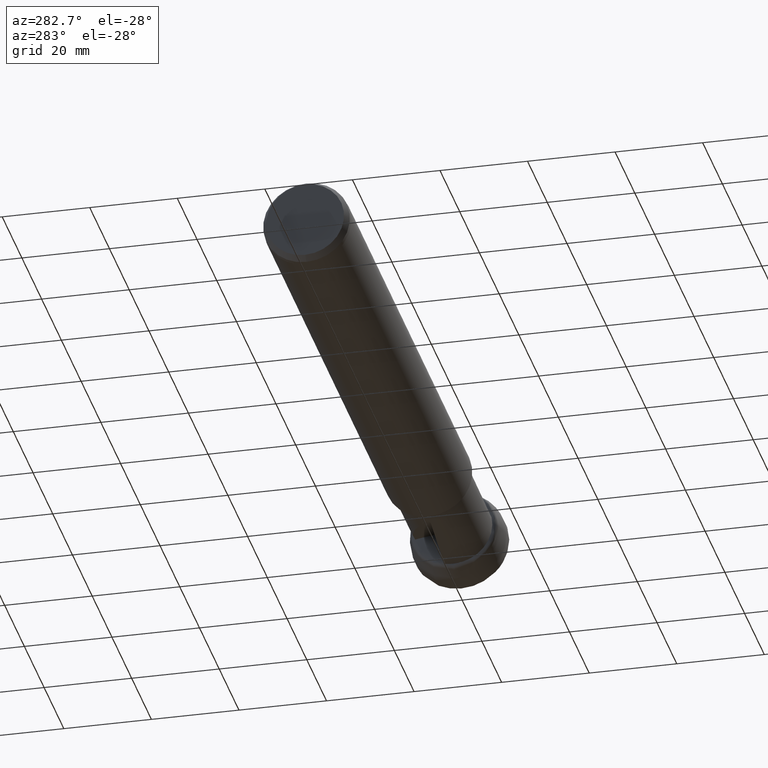
[diagram: clean part render]
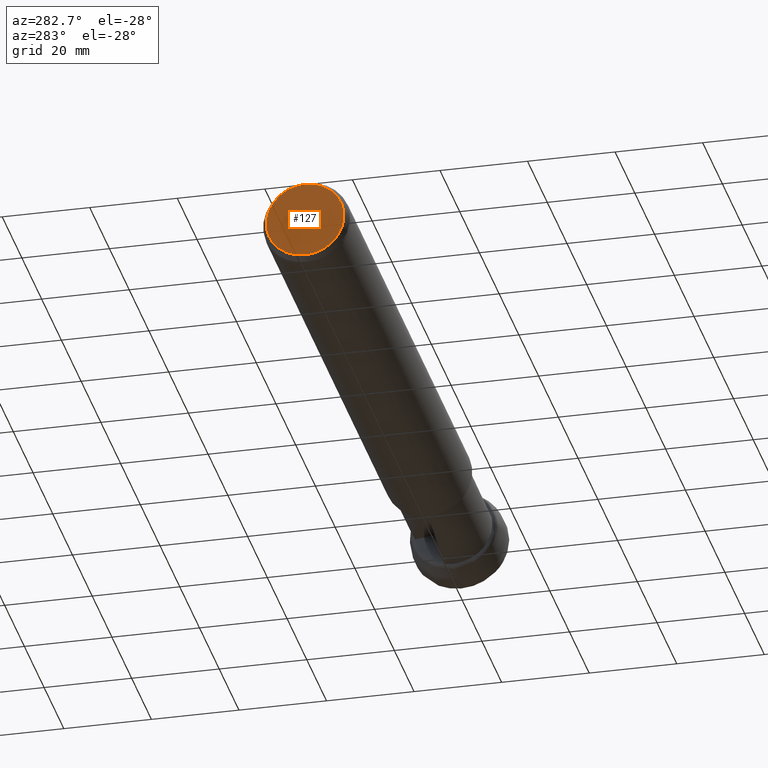
[diagram: same view with one face highlighted and labeled with its STEP entity id]
A machine part, auxiliary view. The second image highlights one B-rep face of the part: STEP entity #127.
In plain terms, the highlighted planar face has unit normal (-1, 0, 0).
Its self-contained STEP definition (entity closure, byte-faithful):
#127 = ADVANCED_FACE ( 'Fl�che10', ( #1289 ), #277, .T. ) ;
#277 = PLANE ( 'NONE',  #364 ) ;
#364 = AXIS2_PLACEMENT_3D ( 'NONE', #455, #1670, #1839 ) ;
#381 = VERTEX_POINT ( 'NONE', #1115 ) ;
#455 = CARTESIAN_POINT ( 'NONE',  ( -159.2410000000000100, 8.899999999999980800, 0.0000000000000000000 ) ) ;
#463 = ORIENTED_EDGE ( 'NONE', *, *, #1433, .F. ) ;
#628 = AXIS2_PLACEMENT_3D ( 'NONE', #649, #1856, #822 ) ;
#649 = CARTESIAN_POINT ( 'NONE',  ( -159.2410000000000100, 0.0000000000000000000, 0.0000000000000000000 ) ) ;
#822 = DIRECTION ( 'NONE',  ( 0.0000000000000000000, 0.0000000000000000000, -1.000000000000000000 ) ) ;
#1115 = CARTESIAN_POINT ( 'NONE',  ( -159.2410000000000100, 0.0000000000000000000, -8.899999999999980800 ) ) ;
#1265 = CIRCLE ( 'NONE', #628, 8.899999999999980800 ) ;
#1289 = FACE_OUTER_BOUND ( 'NONE', #1553, .T. ) ;
#1433 = EDGE_CURVE ( 'NONE', #381, #381, #1265, .T. ) ;
#1553 = EDGE_LOOP ( 'NONE', ( #463 ) ) ;
#1670 = DIRECTION ( 'NONE',  ( -1.000000000000000000, 0.0000000000000000000, 0.0000000000000000000 ) ) ;
#1839 = DIRECTION ( 'NONE',  ( 0.0000000000000000000, 0.0000000000000000000, 1.000000000000000000 ) ) ;
#1856 = DIRECTION ( 'NONE',  ( 1.000000000000000000, -0.0000000000000000000, -0.0000000000000000000 ) ) ;